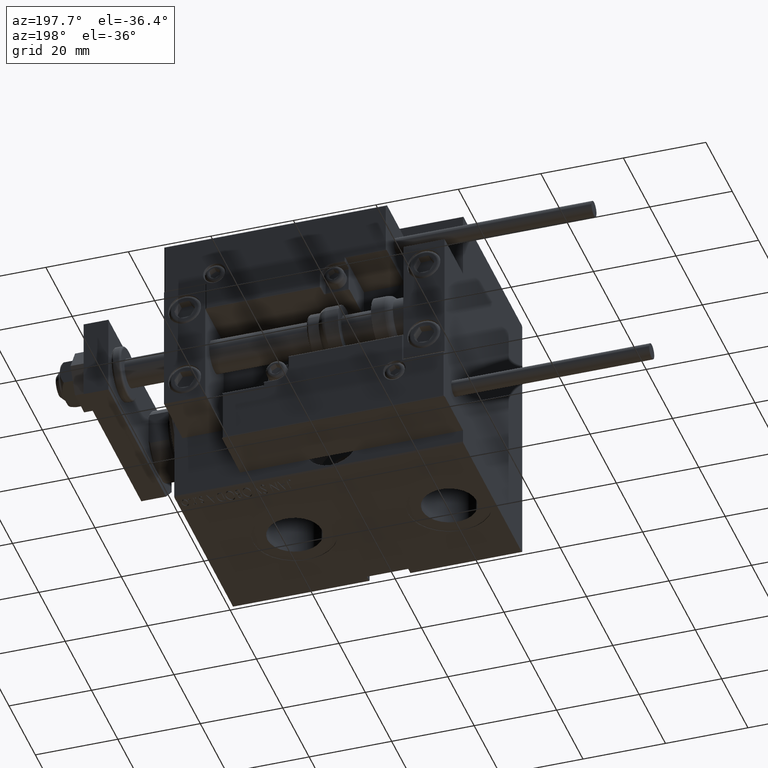
[diagram: clean part render]
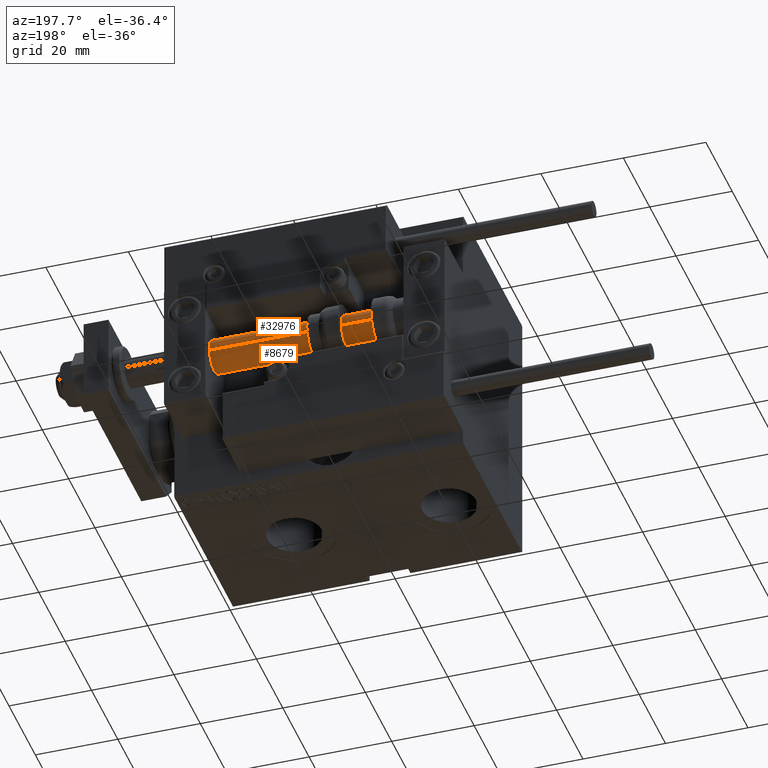
[diagram: same view with one multi-face feature highlighted, each face labeled with its STEP entity id]
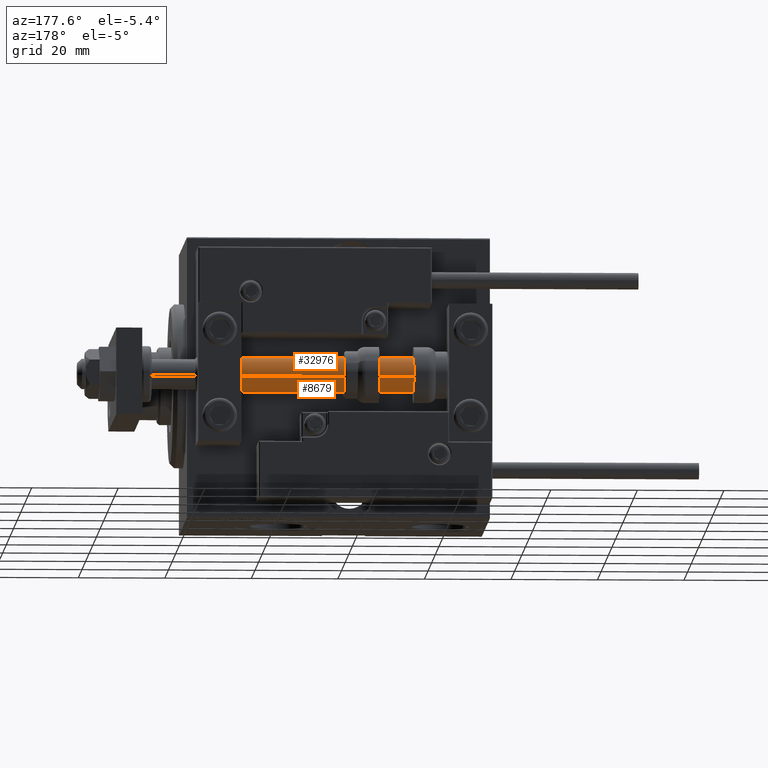
[diagram: same view with one multi-face feature highlighted, each face labeled with its STEP entity id]
A machine part, auxiliary view. The highlighted faces form ONE feature: a constant-radius fillet chain: 2 tangent blend faces with common blend radius 4 mm. The faces share edges in the B-rep.
A second angle (auxiliary view) of the same feature is appended — it is thin or edge-on in the first view.
Their STEP definitions:
[1] entity #8679 (Cylinder):
#483 = AXIS2_PLACEMENT_3D ( 'NONE', #821, #19754, #15975 ) ;
#821 = CARTESIAN_POINT ( 'NONE',  ( 0.000000000000000000, 0.000000000000000000, 70.00000000000000000 ) ) ;
#988 = CARTESIAN_POINT ( 'NONE',  ( 4.000000000000000000, 4.898587196589412829E-16, 70.00000000000000000 ) ) ;
#3755 = VECTOR ( 'NONE', #12995, 1000.000000000000000 ) ;
#4356 = FACE_OUTER_BOUND ( 'NONE', #37964, .T. ) ;
#4719 = AXIS2_PLACEMENT_3D ( 'NONE', #20562, #23854, #39007 ) ;
#7218 = CIRCLE ( 'NONE', #30607, 4.000000000000000000 ) ;
#8679 = ADVANCED_FACE ( 'NONE', ( #4356 ), #35165, .T. ) ;
#9683 = EDGE_CURVE ( 'NONE', #17615, #10578, #39765, .T. ) ;
#10578 = VERTEX_POINT ( 'NONE', #47308 ) ;
#11264 = DIRECTION ( 'NONE',  ( -0.000000000000000000, -0.000000000000000000, -1.000000000000000000 ) ) ;
#11576 = ORIENTED_EDGE ( 'NONE', *, *, #30781, .T. ) ;
#12995 = DIRECTION ( 'NONE',  ( -0.000000000000000000, -0.000000000000000000, -1.000000000000000000 ) ) ;
#15975 = DIRECTION ( 'NONE',  ( -1.000000000000000000, 0.000000000000000000, 0.000000000000000000 ) ) ;
#17615 = VERTEX_POINT ( 'NONE', #26572 ) ;
#18896 = VERTEX_POINT ( 'NONE', #988 ) ;
#19023 = ORIENTED_EDGE ( 'NONE', *, *, #49781, .F. ) ;
#19754 = DIRECTION ( 'NONE',  ( -0.000000000000000000, -0.000000000000000000, -1.000000000000000000 ) ) ;
#19821 = DIRECTION ( 'NONE',  ( 1.000000000000000000, 0.000000000000000000, 0.000000000000000000 ) ) ;
#20562 = CARTESIAN_POINT ( 'NONE',  ( 0.000000000000000000, 0.000000000000000000, 70.00000000000000000 ) ) ;
#22397 = VECTOR ( 'NONE', #11264, 1000.000000000000000 ) ;
#23658 = ORIENTED_EDGE ( 'NONE', *, *, #9683, .F. ) ;
#23854 = DIRECTION ( 'NONE',  ( 0.000000000000000000, 0.000000000000000000, 1.000000000000000000 ) ) ;
#25937 = EDGE_CURVE ( 'NONE', #18896, #26361, #45841, .T. ) ;
#26361 = VERTEX_POINT ( 'NONE', #33037 ) ;
#26572 = CARTESIAN_POINT ( 'NONE',  ( -4.000000000000000000, 0.000000000000000000, 70.00000000000000000 ) ) ;
#28934 = CIRCLE ( 'NONE', #4719, 4.000000000000000000 ) ;
#30607 = AXIS2_PLACEMENT_3D ( 'NONE', #39017, #35482, #19821 ) ;
#30781 = EDGE_CURVE ( 'NONE', #26361, #10578, #7218, .T. ) ;
#33037 = CARTESIAN_POINT ( 'NONE',  ( 4.000000000000000000, 4.898587196589412829E-16, 2.000000000000029310 ) ) ;
#34197 = ORIENTED_EDGE ( 'NONE', *, *, #25937, .T. ) ;
#35165 = CYLINDRICAL_SURFACE ( 'NONE', #483, 4.000000000000000000 ) ;
#35480 = CARTESIAN_POINT ( 'NONE',  ( -4.000000000000000000, 0.000000000000000000, 70.00000000000000000 ) ) ;
#35482 = DIRECTION ( 'NONE',  ( -0.000000000000000000, -0.000000000000000000, 1.000000000000000000 ) ) ;
#37964 = EDGE_LOOP ( 'NONE', ( #19023, #34197, #11576, #23658 ) ) ;
#39007 = DIRECTION ( 'NONE',  ( 1.000000000000000000, 0.000000000000000000, 0.000000000000000000 ) ) ;
#39017 = CARTESIAN_POINT ( 'NONE',  ( 0.000000000000000000, 0.000000000000000000, 2.000000000000029310 ) ) ;
#39765 = LINE ( 'NONE', #35480, #3755 ) ;
#41332 = CARTESIAN_POINT ( 'NONE',  ( 4.000000000000000000, 4.898587196589412829E-16, 70.00000000000000000 ) ) ;
#45841 = LINE ( 'NONE', #41332, #22397 ) ;
#47308 = CARTESIAN_POINT ( 'NONE',  ( -4.000000000000000000, 0.000000000000000000, 2.000000000000029310 ) ) ;
#49781 = EDGE_CURVE ( 'NONE', #18896, #17615, #28934, .T. ) ;
[2] entity #32976 (Cylinder):
#988 = CARTESIAN_POINT ( 'NONE',  ( 4.000000000000000000, 4.898587196589412829E-16, 70.00000000000000000 ) ) ;
#3755 = VECTOR ( 'NONE', #12995, 1000.000000000000000 ) ;
#6192 = CIRCLE ( 'NONE', #38435, 4.000000000000000000 ) ;
#8190 = CARTESIAN_POINT ( 'NONE',  ( 0.000000000000000000, 0.000000000000000000, 70.00000000000000000 ) ) ;
#8434 = DIRECTION ( 'NONE',  ( 0.000000000000000000, 0.000000000000000000, 1.000000000000000000 ) ) ;
#9683 = EDGE_CURVE ( 'NONE', #17615, #10578, #39765, .T. ) ;
#9830 = EDGE_CURVE ( 'NONE', #10578, #26361, #6192, .T. ) ;
#10578 = VERTEX_POINT ( 'NONE', #47308 ) ;
#11264 = DIRECTION ( 'NONE',  ( -0.000000000000000000, -0.000000000000000000, -1.000000000000000000 ) ) ;
#12995 = DIRECTION ( 'NONE',  ( -0.000000000000000000, -0.000000000000000000, -1.000000000000000000 ) ) ;
#16356 = EDGE_LOOP ( 'NONE', ( #24558, #47959, #30890, #40376 ) ) ;
#16561 = FACE_OUTER_BOUND ( 'NONE', #16356, .T. ) ;
#17615 = VERTEX_POINT ( 'NONE', #26572 ) ;
#18896 = VERTEX_POINT ( 'NONE', #988 ) ;
#19944 = CIRCLE ( 'NONE', #48162, 4.000000000000000000 ) ;
#21086 = CARTESIAN_POINT ( 'NONE',  ( 0.000000000000000000, 0.000000000000000000, 2.000000000000029310 ) ) ;
#22258 = EDGE_CURVE ( 'NONE', #17615, #18896, #19944, .T. ) ;
#22397 = VECTOR ( 'NONE', #11264, 1000.000000000000000 ) ;
#23838 = DIRECTION ( 'NONE',  ( 1.000000000000000000, 0.000000000000000000, 0.000000000000000000 ) ) ;
#24558 = ORIENTED_EDGE ( 'NONE', *, *, #25937, .F. ) ;
#25937 = EDGE_CURVE ( 'NONE', #18896, #26361, #45841, .T. ) ;
#26361 = VERTEX_POINT ( 'NONE', #33037 ) ;
#26572 = CARTESIAN_POINT ( 'NONE',  ( -4.000000000000000000, 0.000000000000000000, 70.00000000000000000 ) ) ;
#28171 = DIRECTION ( 'NONE',  ( -0.000000000000000000, -0.000000000000000000, -1.000000000000000000 ) ) ;
#28671 = CYLINDRICAL_SURFACE ( 'NONE', #35519, 4.000000000000000000 ) ;
#29162 = DIRECTION ( 'NONE',  ( 1.000000000000000000, 0.000000000000000000, 0.000000000000000000 ) ) ;
#30890 = ORIENTED_EDGE ( 'NONE', *, *, #9683, .T. ) ;
#32976 = ADVANCED_FACE ( 'NONE', ( #16561 ), #28671, .T. ) ;
#33037 = CARTESIAN_POINT ( 'NONE',  ( 4.000000000000000000, 4.898587196589412829E-16, 2.000000000000029310 ) ) ;
#35480 = CARTESIAN_POINT ( 'NONE',  ( -4.000000000000000000, 0.000000000000000000, 70.00000000000000000 ) ) ;
#35519 = AXIS2_PLACEMENT_3D ( 'NONE', #40300, #28171, #47324 ) ;
#38435 = AXIS2_PLACEMENT_3D ( 'NONE', #21086, #45013, #29162 ) ;
#39765 = LINE ( 'NONE', #35480, #3755 ) ;
#40300 = CARTESIAN_POINT ( 'NONE',  ( 0.000000000000000000, 0.000000000000000000, 70.00000000000000000 ) ) ;
#40376 = ORIENTED_EDGE ( 'NONE', *, *, #9830, .T. ) ;
#41332 = CARTESIAN_POINT ( 'NONE',  ( 4.000000000000000000, 4.898587196589412829E-16, 70.00000000000000000 ) ) ;
#45013 = DIRECTION ( 'NONE',  ( -0.000000000000000000, -0.000000000000000000, 1.000000000000000000 ) ) ;
#45841 = LINE ( 'NONE', #41332, #22397 ) ;
#47308 = CARTESIAN_POINT ( 'NONE',  ( -4.000000000000000000, 0.000000000000000000, 2.000000000000029310 ) ) ;
#47324 = DIRECTION ( 'NONE',  ( -1.000000000000000000, 0.000000000000000000, 0.000000000000000000 ) ) ;
#47959 = ORIENTED_EDGE ( 'NONE', *, *, #22258, .F. ) ;
#48162 = AXIS2_PLACEMENT_3D ( 'NONE', #8190, #8434, #23838 ) ;